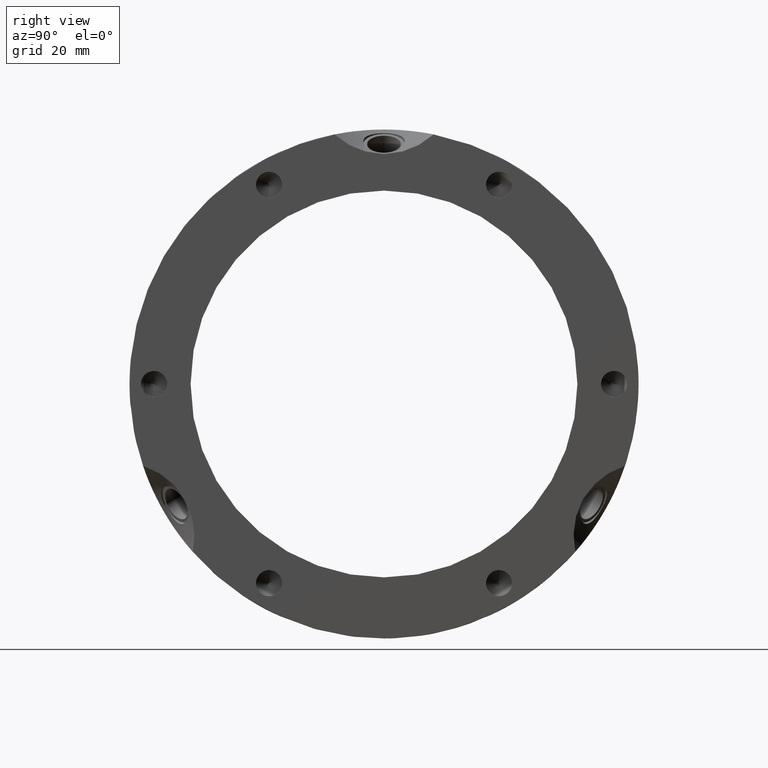
[diagram: clean part render]
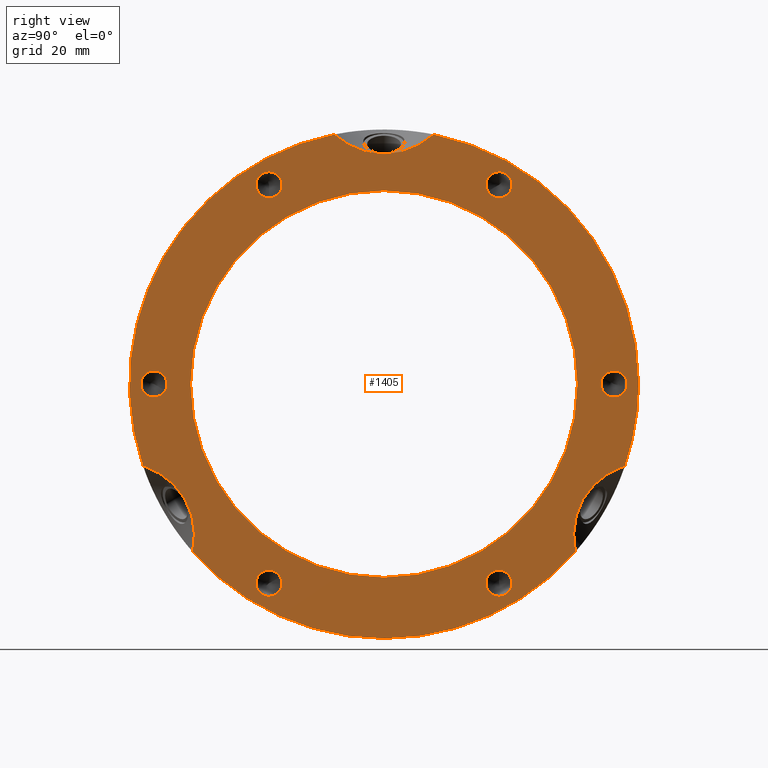
[diagram: same view with one face highlighted and labeled with its STEP entity id]
A machine part, right view. The second image highlights one B-rep face of the part: STEP entity #1405.
In plain terms, the highlighted planar face has unit normal (1, 0, 0).
Its self-contained STEP definition (entity closure, byte-faithful):
#165=CARTESIAN_POINT('',(31.999999999999986,25.478718707889811,47.330435313820793));
#166=VERTEX_POINT('',#165);
#167=CARTESIAN_POINT('',(31.999999999999986,28.250000000000021,48.93043531382078));
#168=DIRECTION('',(-1.0,0.0,0.0));
#169=DIRECTION('',(0.0,-0.866025403784439,-0.499999999999999));
#170=AXIS2_PLACEMENT_3D('',#167,#168,#169);
#171=CIRCLE('',#170,3.200000000000001);
#172=EDGE_CURVE('',#166,#166,#171,.T.);
#277=CARTESIAN_POINT('',(31.999999999999986,53.728718707889797,1.600000000000006));
#278=VERTEX_POINT('',#277);
#279=CARTESIAN_POINT('',(31.999999999999986,56.5,4.440892E-015));
#280=DIRECTION('',(-1.0,0.0,0.0));
#281=DIRECTION('',(0.0,-0.866025403784438,0.5));
#282=AXIS2_PLACEMENT_3D('',#279,#280,#281);
#283=CIRCLE('',#282,3.200000000000001);
#284=EDGE_CURVE('',#278,#278,#283,.T.);
#389=CARTESIAN_POINT('',(31.999999999999986,28.250000000000021,-45.730435313820777));
#390=VERTEX_POINT('',#389);
#391=CARTESIAN_POINT('',(31.999999999999986,28.250000000000021,-48.93043531382078));
#392=DIRECTION('',(-1.0,0.0,0.0));
#393=DIRECTION('',(0.0,0.0,1.0));
#394=AXIS2_PLACEMENT_3D('',#391,#392,#393);
#395=CIRCLE('',#394,3.200000000000001);
#396=EDGE_CURVE('',#390,#390,#395,.T.);
#501=CARTESIAN_POINT('',(31.999999999999986,-25.478718707889783,-47.3304353138208));
#502=VERTEX_POINT('',#501);
#503=CARTESIAN_POINT('',(31.999999999999986,-28.249999999999989,-48.930435313820794));
#504=DIRECTION('',(-1.0,0.0,0.0));
#505=DIRECTION('',(0.0,0.866025403784439,0.5));
#506=AXIS2_PLACEMENT_3D('',#503,#504,#505);
#507=CIRCLE('',#506,3.200000000000001);
#508=EDGE_CURVE('',#502,#502,#507,.T.);
#613=CARTESIAN_POINT('',(31.999999999999986,-53.728718707889804,-1.600000000000024));
#614=VERTEX_POINT('',#613);
#615=CARTESIAN_POINT('',(31.999999999999986,-56.5,-2.220446E-014));
#616=DIRECTION('',(-1.0,0.0,0.0));
#617=DIRECTION('',(0.0,0.866025403784439,-0.5));
#618=AXIS2_PLACEMENT_3D('',#615,#616,#617);
#619=CIRCLE('',#618,3.200000000000001);
#620=EDGE_CURVE('',#614,#614,#619,.T.);
#650=CARTESIAN_POINT('',(31.999999999999986,-28.250000000000028,45.73043531382077));
#651=VERTEX_POINT('',#650);
#652=CARTESIAN_POINT('',(31.999999999999986,-28.250000000000028,48.930435313820773));
#653=DIRECTION('',(-1.0,0.0,0.0));
#654=DIRECTION('',(0.0,0.0,-1.0));
#655=AXIS2_PLACEMENT_3D('',#652,#653,#654);
#656=CIRCLE('',#655,3.200000000000001);
#657=EDGE_CURVE('',#651,#651,#656,.T.);
#745=CARTESIAN_POINT('',(31.999999999999886,49.0876277835048,-27.983268738645087));
#746=VERTEX_POINT('',#745);
#747=CARTESIAN_POINT('',(31.999999999999986,59.186412670163989,-20.080302667964212));
#748=VERTEX_POINT('',#747);
#749=CARTESIAN_POINT('',(31.999999999999986,68.93043531382078,-39.797005383792559));
#750=DIRECTION('',(-1.0,0.0,0.0));
#751=DIRECTION('',(0.0,-0.866025403784438,0.5));
#752=AXIS2_PLACEMENT_3D('',#749,#750,#751);
#753=ELLIPSE('',#752,23.094010767585029,19.999999999999993);
#754=EDGE_CURVE('',#746,#748,#753,.T.);
#756=CARTESIAN_POINT('',(31.999999999999886,48.778035500345908,-28.519498302707575));
#757=VERTEX_POINT('',#756);
#796=CARTESIAN_POINT('',(31.999999999999989,46.983258561219401,-41.216785597249142));
#797=VERTEX_POINT('',#796);
#798=CARTESIAN_POINT('',(31.999999999999986,68.93043531382078,-39.797005383792559));
#799=DIRECTION('',(-1.0,0.0,0.0));
#800=DIRECTION('',(0.0,-0.866025403784438,0.5));
#801=AXIS2_PLACEMENT_3D('',#798,#799,#800);
#802=ELLIPSE('',#801,23.094010767585029,19.999999999999993);
#803=EDGE_CURVE('',#797,#757,#802,.T.);
#892=CARTESIAN_POINT('',(31.999999999999986,57.749999999999901,-33.34197804570087));
#893=DIRECTION('',(-1.0,0.0,0.0));
#894=DIRECTION('',(0.0,-0.866025403784438,0.5));
#895=AXIS2_PLACEMENT_3D('',#892,#893,#894);
#896=ELLIPSE('',#895,10.200000000000003,5.100000000000009);
#897=EDGE_CURVE('',#757,#746,#896,.T.);
#931=CARTESIAN_POINT('',(31.999999999999886,-48.778035500345915,-28.51949830270755));
#932=VERTEX_POINT('',#931);
#933=CARTESIAN_POINT('',(31.999999999999986,-46.983258561219429,-41.216785597249121));
#934=VERTEX_POINT('',#933);
#935=CARTESIAN_POINT('',(31.999999999999986,-68.930435313820809,-39.797005383792509));
#936=DIRECTION('',(-1.0,0.0,0.0));
#937=DIRECTION('',(0.0,0.866025403784439,0.5));
#938=AXIS2_PLACEMENT_3D('',#935,#936,#937);
#939=ELLIPSE('',#938,23.094010767585029,19.999999999999993);
#940=EDGE_CURVE('',#932,#934,#939,.T.);
#942=CARTESIAN_POINT('',(31.999999999999886,-49.087627783504828,-27.983268738645044));
#943=VERTEX_POINT('',#942);
#982=CARTESIAN_POINT('',(31.999999999999986,-59.186412670164032,-20.080302667964148));
#983=VERTEX_POINT('',#982);
#984=CARTESIAN_POINT('',(31.999999999999986,-68.930435313820809,-39.797005383792509));
#985=DIRECTION('',(-1.0,0.0,0.0));
#986=DIRECTION('',(0.0,0.866025403784439,0.5));
#987=AXIS2_PLACEMENT_3D('',#984,#985,#986);
#988=ELLIPSE('',#987,23.094010767585029,19.999999999999993);
#989=EDGE_CURVE('',#983,#943,#988,.T.);
#1078=CARTESIAN_POINT('',(31.999999999999986,-57.749999999999915,-33.341978045700827));
#1079=DIRECTION('',(-1.0,0.0,0.0));
#1080=DIRECTION('',(0.0,0.866025403784439,0.5));
#1081=AXIS2_PLACEMENT_3D('',#1078,#1079,#1080);
#1082=ELLIPSE('',#1081,10.199999999999999,5.100000000000007);
#1083=EDGE_CURVE('',#943,#932,#1082,.T.);
#1153=CARTESIAN_POINT('',(31.999999999999986,0.0,0.0));
#1154=DIRECTION('',(1.0,0.0,0.0));
#1155=DIRECTION('',(0.0,1.0,0.0));
#1156=AXIS2_PLACEMENT_3D('',#1153,#1154,#1155);
#1157=CIRCLE('',#1156,62.5);
#1158=EDGE_CURVE('',#934,#797,#1157,.T.);
#1161=CARTESIAN_POINT('',(31.999999999999986,-12.203154108944601,61.29708826521329));
#1162=VERTEX_POINT('',#1161);
#1163=CARTESIAN_POINT('',(31.999999999999986,0.0,0.0));
#1164=DIRECTION('',(1.0,0.0,0.0));
#1165=DIRECTION('',(0.0,1.0,0.0));
#1166=AXIS2_PLACEMENT_3D('',#1163,#1164,#1165);
#1167=CIRCLE('',#1166,62.5);
#1168=EDGE_CURVE('',#1162,#983,#1167,.T.);
#1170=CARTESIAN_POINT('',(31.999999999999986,12.203154108944601,61.29708826521329));
#1171=VERTEX_POINT('',#1170);
#1197=CARTESIAN_POINT('',(31.999999999999986,0.0,0.0));
#1198=DIRECTION('',(1.0,0.0,0.0));
#1199=DIRECTION('',(0.0,1.0,0.0));
#1200=AXIS2_PLACEMENT_3D('',#1197,#1198,#1199);
#1201=CIRCLE('',#1200,62.5);
#1202=EDGE_CURVE('',#748,#1171,#1201,.T.);
#1270=CARTESIAN_POINT('',(31.999999999999986,-0.309592283154607,56.502767041352342));
#1271=VERTEX_POINT('',#1270);
#1272=CARTESIAN_POINT('',(31.999999999999986,0.309592283154607,56.502767041352342));
#1273=VERTEX_POINT('',#1272);
#1312=CARTESIAN_POINT('',(31.999999999999986,0.0,66.683956091401669));
#1313=DIRECTION('',(-1.0,0.0,0.0));
#1314=DIRECTION('',(0.0,0.0,-1.0));
#1315=AXIS2_PLACEMENT_3D('',#1312,#1313,#1314);
#1316=ELLIPSE('',#1315,10.199999999999999,5.100000000000007);
#1317=EDGE_CURVE('',#1273,#1271,#1316,.T.);
#1345=CARTESIAN_POINT('',(31.999999999999986,55.0,0.0));
#1346=DIRECTION('',(1.0,0.0,0.0));
#1347=DIRECTION('',(0.0,0.0,-1.0));
#1348=AXIS2_PLACEMENT_3D('',#1345,#1346,#1347);
#1349=PLANE('',#1348);
#1350=ORIENTED_EDGE('',*,*,#754,.T.);
#1351=ORIENTED_EDGE('',*,*,#1202,.T.);
#1352=CARTESIAN_POINT('',(31.999999999999986,0.0,79.594010767585047));
#1353=DIRECTION('',(-1.0,0.0,0.0));
#1354=DIRECTION('',(0.0,0.0,-1.0));
#1355=AXIS2_PLACEMENT_3D('',#1352,#1353,#1354);
#1356=ELLIPSE('',#1355,23.094010767585029,19.999999999999996);
#1357=EDGE_CURVE('',#1171,#1273,#1356,.T.);
#1358=ORIENTED_EDGE('',*,*,#1357,.T.);
#1359=ORIENTED_EDGE('',*,*,#1317,.T.);
#1360=CARTESIAN_POINT('',(31.999999999999986,0.0,79.594010767585047));
#1361=DIRECTION('',(-1.0,0.0,0.0));
#1362=DIRECTION('',(0.0,0.0,-1.0));
#1363=AXIS2_PLACEMENT_3D('',#1360,#1361,#1362);
#1364=ELLIPSE('',#1363,23.094010767585029,19.999999999999996);
#1365=EDGE_CURVE('',#1271,#1162,#1364,.T.);
#1366=ORIENTED_EDGE('',*,*,#1365,.T.);
#1367=ORIENTED_EDGE('',*,*,#1168,.T.);
#1368=ORIENTED_EDGE('',*,*,#989,.T.);
#1369=ORIENTED_EDGE('',*,*,#1083,.T.);
#1370=ORIENTED_EDGE('',*,*,#940,.T.);
#1371=ORIENTED_EDGE('',*,*,#1158,.T.);
#1372=ORIENTED_EDGE('',*,*,#803,.T.);
#1373=ORIENTED_EDGE('',*,*,#897,.T.);
#1374=EDGE_LOOP('',(#1350,#1351,#1358,#1359,#1366,#1367,#1368,#1369,#1370,#1371,#1372,#1373));
#1375=FACE_OUTER_BOUND('',#1374,.T.);
#1376=ORIENTED_EDGE('',*,*,#172,.T.);
#1377=EDGE_LOOP('',(#1376));
#1378=FACE_BOUND('',#1377,.T.);
#1379=ORIENTED_EDGE('',*,*,#284,.T.);
#1380=EDGE_LOOP('',(#1379));
#1381=FACE_BOUND('',#1380,.T.);
#1382=ORIENTED_EDGE('',*,*,#396,.T.);
#1383=EDGE_LOOP('',(#1382));
#1384=FACE_BOUND('',#1383,.T.);
#1385=ORIENTED_EDGE('',*,*,#508,.T.);
#1386=EDGE_LOOP('',(#1385));
#1387=FACE_BOUND('',#1386,.T.);
#1388=ORIENTED_EDGE('',*,*,#620,.T.);
#1389=EDGE_LOOP('',(#1388));
#1390=FACE_BOUND('',#1389,.T.);
#1391=ORIENTED_EDGE('',*,*,#657,.T.);
#1392=EDGE_LOOP('',(#1391));
#1393=FACE_BOUND('',#1392,.T.);
#1394=CARTESIAN_POINT('',(31.999999999999989,47.5,0.0));
#1395=VERTEX_POINT('',#1394);
#1396=CARTESIAN_POINT('',(31.999999999999989,0.0,0.0));
#1397=DIRECTION('',(1.0,0.0,0.0));
#1398=DIRECTION('',(0.0,1.0,0.0));
#1399=AXIS2_PLACEMENT_3D('',#1396,#1397,#1398);
#1400=CIRCLE('',#1399,47.5);
#1401=EDGE_CURVE('',#1395,#1395,#1400,.T.);
#1402=ORIENTED_EDGE('',*,*,#1401,.F.);
#1403=EDGE_LOOP('',(#1402));
#1404=FACE_BOUND('',#1403,.T.);
#1405=ADVANCED_FACE('',(#1375,#1378,#1381,#1384,#1387,#1390,#1393,#1404),#1349,.T.);